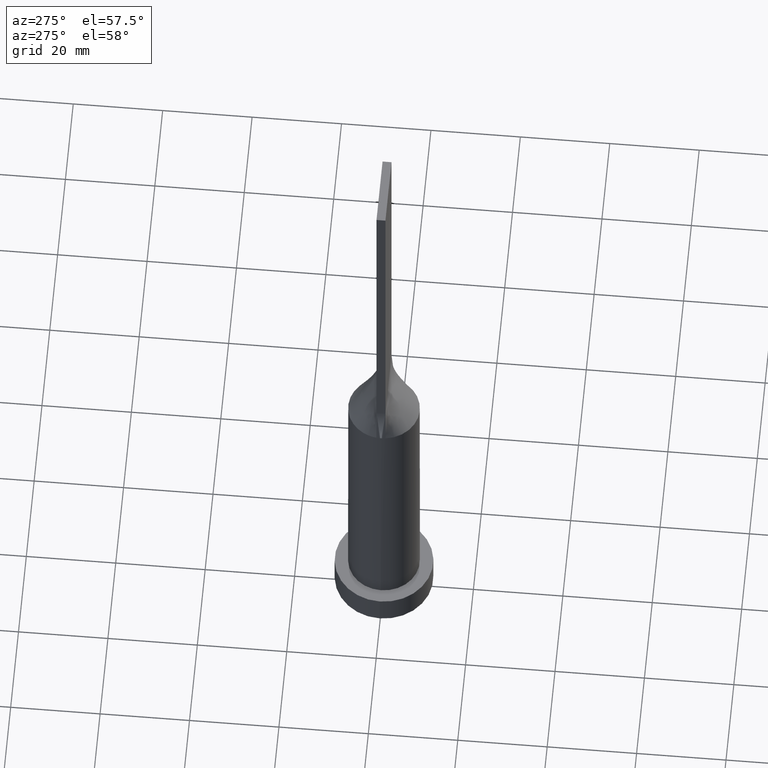
[diagram: clean part render]
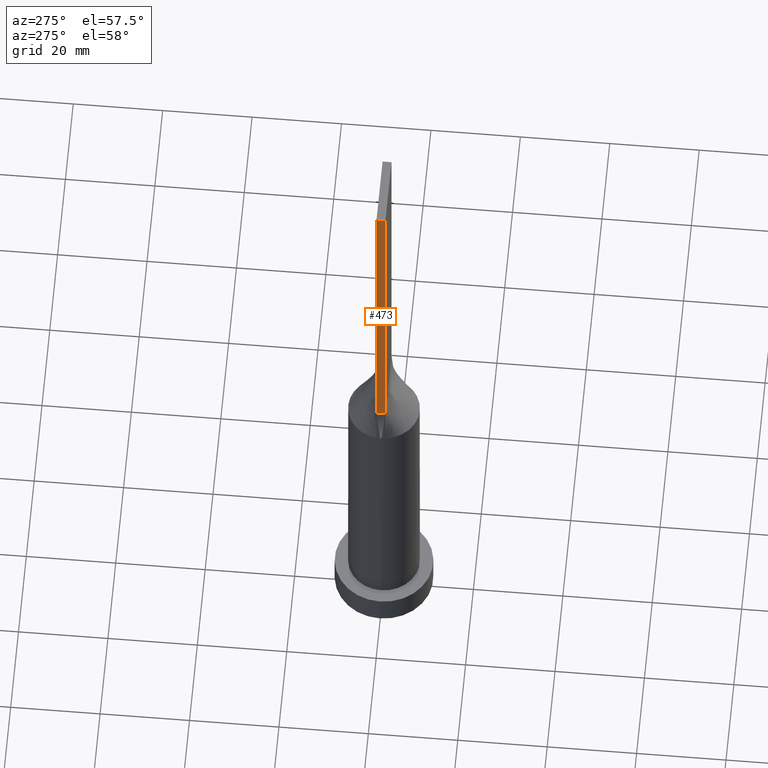
[diagram: same view with one face highlighted and labeled with its STEP entity id]
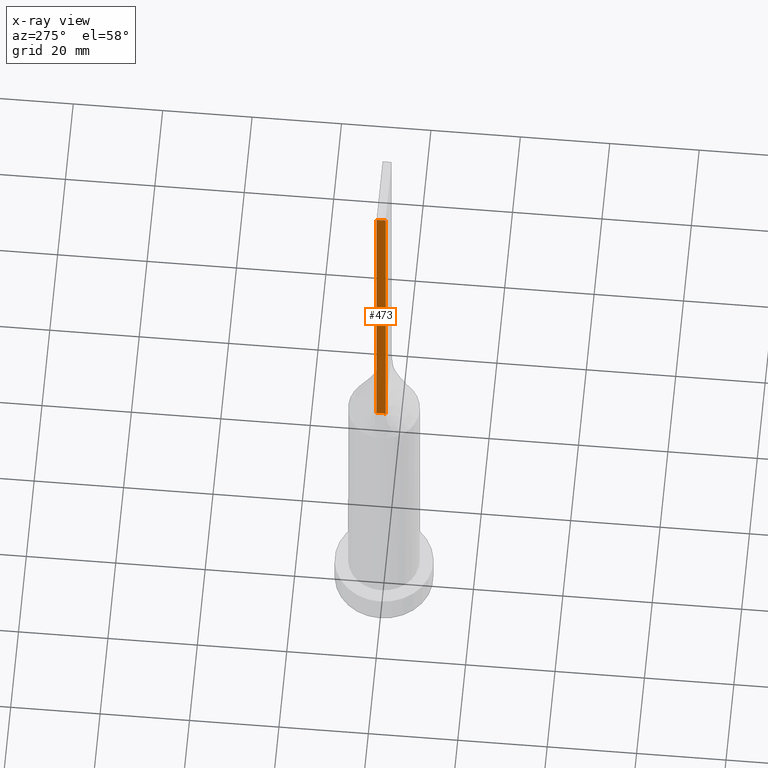
[diagram: x-ray of the same camera — body ghosted, the highlighted face saturated]
A machine part, auxiliary view. The second image highlights one B-rep face of the part: STEP entity #473.
The next image is the same camera in x-ray: the body ghosted, the highlighted face saturated — about 0% of this face is hidden behind the body in this view.
In plain terms, the highlighted planar face has unit normal (1, 0, -0).
Its self-contained STEP definition (entity closure, byte-faithful):
#17 = CARTESIAN_POINT ( 'NONE',  ( -7.750000000000000000, 1.000000000000000000, 160.0000000000000000 ) ) ;
#52 = VERTEX_POINT ( 'NONE', #310 ) ;
#89 = EDGE_CURVE ( 'NONE', #52, #486, #125, .T. ) ;
#112 = FACE_OUTER_BOUND ( 'NONE', #136, .T. ) ;
#116 = CARTESIAN_POINT ( 'NONE',  ( -7.750000000000000000, -0.9999999999999986677, 160.0000000000000000 ) ) ;
#125 = LINE ( 'NONE', #181, #471 ) ;
#136 = EDGE_LOOP ( 'NONE', ( #308, #404, #204, #221 ) ) ;
#143 = AXIS2_PLACEMENT_3D ( 'NONE', #272, #269, #423 ) ;
#181 = CARTESIAN_POINT ( 'NONE',  ( -7.750000000000000000, 1.000000000000000000, 80.00000000000000000 ) ) ;
#204 = ORIENTED_EDGE ( 'NONE', *, *, #295, .F. ) ;
#205 = CARTESIAN_POINT ( 'NONE',  ( -7.750000000000000000, -0.9999999999999986677, 160.0000000000000000 ) ) ;
#221 = ORIENTED_EDGE ( 'NONE', *, *, #598, .T. ) ;
#269 = DIRECTION ( 'NONE',  ( 1.000000000000000000, 0.000000000000000000, -0.000000000000000000 ) ) ;
#272 = CARTESIAN_POINT ( 'NONE',  ( -7.750000000000000000, 1.000000000000000000, 160.0000000000000000 ) ) ;
#277 = LINE ( 'NONE', #472, #542 ) ;
#295 = EDGE_CURVE ( 'NONE', #497, #417, #537, .T. ) ;
#308 = ORIENTED_EDGE ( 'NONE', *, *, #89, .T. ) ;
#310 = CARTESIAN_POINT ( 'NONE',  ( -7.750000000000000000, 1.000000000000000000, 80.00000000000000000 ) ) ;
#329 = LINE ( 'NONE', #116, #383 ) ;
#374 = VECTOR ( 'NONE', #629, 1000.000000000000000 ) ;
#383 = VECTOR ( 'NONE', #521, 1000.000000000000000 ) ;
#404 = ORIENTED_EDGE ( 'NONE', *, *, #592, .F. ) ;
#417 = VERTEX_POINT ( 'NONE', #205 ) ;
#423 = DIRECTION ( 'NONE',  ( -0.000000000000000000, 0.000000000000000000, -1.000000000000000000 ) ) ;
#429 = DIRECTION ( 'NONE',  ( 0.000000000000000000, -1.000000000000000000, 0.000000000000000000 ) ) ;
#431 = DIRECTION ( 'NONE',  ( -0.000000000000000000, -0.000000000000000000, -1.000000000000000000 ) ) ;
#437 = CARTESIAN_POINT ( 'NONE',  ( -7.750000000000000000, 1.000000000000000000, 160.0000000000000000 ) ) ;
#471 = VECTOR ( 'NONE', #429, 1000.000000000000000 ) ;
#472 = CARTESIAN_POINT ( 'NONE',  ( -7.750000000000000000, 1.000000000000000000, 160.0000000000000000 ) ) ;
#473 = ADVANCED_FACE ( 'NONE', ( #112 ), #518, .F. ) ;
#486 = VERTEX_POINT ( 'NONE', #567 ) ;
#497 = VERTEX_POINT ( 'NONE', #17 ) ;
#518 = PLANE ( 'NONE',  #143 ) ;
#521 = DIRECTION ( 'NONE',  ( -0.000000000000000000, -0.000000000000000000, -1.000000000000000000 ) ) ;
#537 = LINE ( 'NONE', #437, #374 ) ;
#542 = VECTOR ( 'NONE', #431, 1000.000000000000000 ) ;
#567 = CARTESIAN_POINT ( 'NONE',  ( -7.750000000000000000, -0.9999999999999986677, 80.00000000000000000 ) ) ;
#592 = EDGE_CURVE ( 'NONE', #417, #486, #329, .T. ) ;
#598 = EDGE_CURVE ( 'NONE', #497, #52, #277, .T. ) ;
#629 = DIRECTION ( 'NONE',  ( 0.000000000000000000, -1.000000000000000000, 0.000000000000000000 ) ) ;